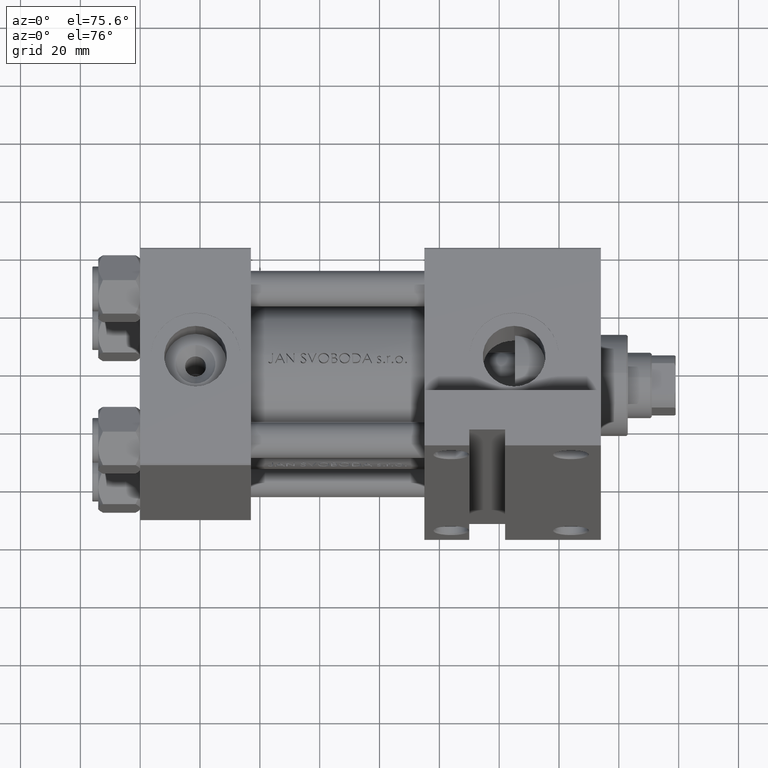
[diagram: clean part render]
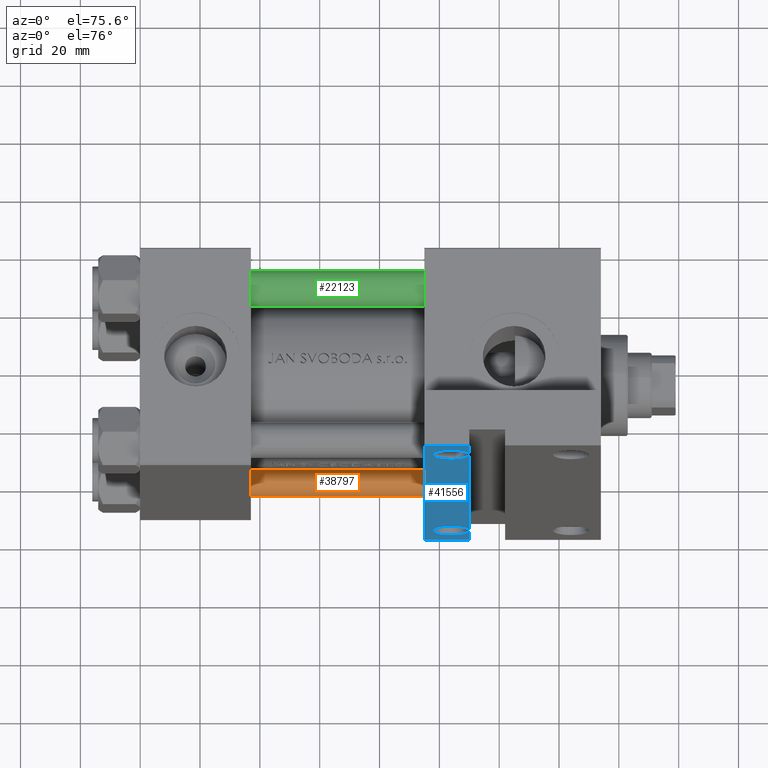
[diagram: same view with three faces highlighted in distinct colors, each labeled with its STEP entity id]
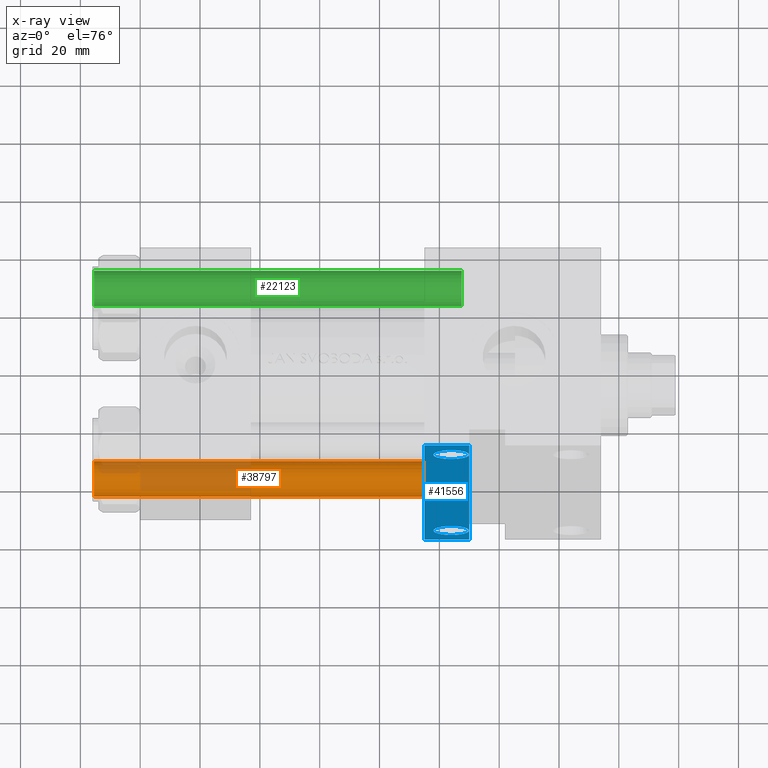
[diagram: x-ray of the same camera — body ghosted, the three highlighted faces saturated]
A machine part, auxiliary view with three faces highlighted in distinct colors.
The next image is the same camera in x-ray (body ghosted, the three faces saturated) — at least one of them is partly hidden behind the body in this view.
Their STEP definitions:

[orange] entity #38797 — the highlighted cylindrical surface (edge-blend (fillet) strip) has radius 6 mm, axis along (1, 0, 0).
#1089 = ORIENTED_EDGE ( 'NONE', *, *, #33209, .F. ) ;
#3988 = CARTESIAN_POINT ( 'NONE',  ( -6.000000000000000888, 0.000000000000000000, 0.4999999999999865663 ) ) ;
#6094 = FACE_OUTER_BOUND ( 'NONE', #7392, .T. ) ;
#7392 = EDGE_LOOP ( 'NONE', ( #16971, #42893, #25170, #1089 ) ) ;
#8439 = CARTESIAN_POINT ( 'NONE',  ( -6.000000000000000888, 0.000000000000000000, 124.0000000000000000 ) ) ;
#9364 = CARTESIAN_POINT ( 'NONE',  ( 6.000000000000000888, 7.347880794884120722E-16, 123.5000000000000426 ) ) ;
#9735 = EDGE_CURVE ( 'NONE', #32572, #13177, #16349, .T. ) ;
#10352 = AXIS2_PLACEMENT_3D ( 'NONE', #42876, #46964, #36119 ) ;
#11529 = EDGE_CURVE ( 'NONE', #30175, #32572, #29614, .T. ) ;
#12052 = DIRECTION ( 'NONE',  ( -0.000000000000000000, -0.000000000000000000, -1.000000000000000000 ) ) ;
#12739 = DIRECTION ( 'NONE',  ( -0.000000000000000000, -0.000000000000000000, -1.000000000000000000 ) ) ;
#12774 = DIRECTION ( 'NONE',  ( -0.000000000000000000, -0.000000000000000000, 1.000000000000000000 ) ) ;
#13177 = VERTEX_POINT ( 'NONE', #38172 ) ;
#13324 = CARTESIAN_POINT ( 'NONE',  ( 0.000000000000000000, 0.000000000000000000, 124.0000000000000000 ) ) ;
#15666 = LINE ( 'NONE', #8439, #24148 ) ;
#16349 = LINE ( 'NONE', #16589, #43408 ) ;
#16589 = CARTESIAN_POINT ( 'NONE',  ( 6.000000000000000888, 7.347880794884120722E-16, 124.0000000000000000 ) ) ;
#16971 = ORIENTED_EDGE ( 'NONE', *, *, #11529, .T. ) ;
#17756 = VERTEX_POINT ( 'NONE', #3988 ) ;
#23451 = CARTESIAN_POINT ( 'NONE',  ( -6.000000000000000888, 0.000000000000000000, 123.5000000000000426 ) ) ;
#24148 = VECTOR ( 'NONE', #12052, 1000.000000000000000 ) ;
#25124 = AXIS2_PLACEMENT_3D ( 'NONE', #13324, #47314, #31906 ) ;
#25170 = ORIENTED_EDGE ( 'NONE', *, *, #35380, .T. ) ;
#27486 = DIRECTION ( 'NONE',  ( 1.000000000000000000, 0.000000000000000000, 0.000000000000000000 ) ) ;
#28194 = CARTESIAN_POINT ( 'NONE',  ( 0.000000000000000000, 0.000000000000000000, 0.4999999999999865663 ) ) ;
#29614 = CIRCLE ( 'NONE', #10352, 6.000000000000000888 ) ;
#30175 = VERTEX_POINT ( 'NONE', #23451 ) ;
#31906 = DIRECTION ( 'NONE',  ( -1.000000000000000000, 0.000000000000000000, 0.000000000000000000 ) ) ;
#32572 = VERTEX_POINT ( 'NONE', #9364 ) ;
#32731 = AXIS2_PLACEMENT_3D ( 'NONE', #28194, #12774, #27486 ) ;
#33209 = EDGE_CURVE ( 'NONE', #30175, #17756, #15666, .T. ) ;
#35380 = EDGE_CURVE ( 'NONE', #13177, #17756, #41949, .T. ) ;
#35982 = CYLINDRICAL_SURFACE ( 'NONE', #25124, 6.000000000000000888 ) ;
#36119 = DIRECTION ( 'NONE',  ( 1.000000000000000000, 0.000000000000000000, 0.000000000000000000 ) ) ;
#38172 = CARTESIAN_POINT ( 'NONE',  ( 6.000000000000000888, 7.347880794884120722E-16, 0.4999999999999865663 ) ) ;
#38797 = ADVANCED_FACE ( 'NONE', ( #6094 ), #35982, .T. ) ;
#41949 = CIRCLE ( 'NONE', #32731, 6.000000000000000888 ) ;
#42876 = CARTESIAN_POINT ( 'NONE',  ( 0.000000000000000000, 0.000000000000000000, 123.5000000000000426 ) ) ;
#42893 = ORIENTED_EDGE ( 'NONE', *, *, #9735, .T. ) ;
#43408 = VECTOR ( 'NONE', #12739, 1000.000000000000000 ) ;
#46964 = DIRECTION ( 'NONE',  ( 0.000000000000000000, 0.000000000000000000, -1.000000000000000000 ) ) ;
#47314 = DIRECTION ( 'NONE',  ( -0.000000000000000000, -0.000000000000000000, -1.000000000000000000 ) ) ;

[blue] entity #41556 — the highlighted planar face has unit normal (0, -1, 0).
#1016 = VERTEX_POINT ( 'NONE', #37638 ) ;
#2110 = CARTESIAN_POINT ( 'NONE',  ( 95.00000000000000000, 37.50000000000000000, -37.50000000000000000 ) ) ;
#2756 = VERTEX_POINT ( 'NONE', #28215 ) ;
#2937 = EDGE_CURVE ( 'NONE', #1016, #12523, #21218, .T. ) ;
#2995 = DIRECTION ( 'NONE',  ( 1.000000000000000000, 0.000000000000000000, 0.000000000000000000 ) ) ;
#3605 = CARTESIAN_POINT ( 'NONE',  ( 110.0000000000000000, 63.50000000000000000, -37.50000000000000000 ) ) ;
#4395 = CIRCLE ( 'NONE', #25983, 5.999500000000018929 ) ;
#5330 = DIRECTION ( 'NONE',  ( 0.000000000000000000, 0.000000000000000000, -1.000000000000000000 ) ) ;
#5869 = CARTESIAN_POINT ( 'NONE',  ( 103.9999999999999574, 50.99999999999999289, -37.50000000000000000 ) ) ;
#5999 = ORIENTED_EDGE ( 'NONE', *, *, #45014, .T. ) ;
#6167 = EDGE_CURVE ( 'NONE', #12523, #1016, #39797, .T. ) ;
#6630 = CARTESIAN_POINT ( 'NONE',  ( 95.00000000000000000, 63.50000000000000000, -37.50000000000000000 ) ) ;
#7219 = ORIENTED_EDGE ( 'NONE', *, *, #15851, .F. ) ;
#7914 = ORIENTED_EDGE ( 'NONE', *, *, #25475, .T. ) ;
#8968 = PLANE ( 'NONE',  #33669 ) ;
#10216 = CARTESIAN_POINT ( 'NONE',  ( 110.0000000000000000, -63.50000000000000000, -37.50000000000000000 ) ) ;
#10639 = CARTESIAN_POINT ( 'NONE',  ( 110.0000000000000000, -63.50000000000000000, -37.50000000000000000 ) ) ;
#10957 = VECTOR ( 'NONE', #2995, 1000.000000000000000 ) ;
#12523 = VERTEX_POINT ( 'NONE', #24089 ) ;
#13575 = DIRECTION ( 'NONE',  ( -0.000000000000000000, -0.000000000000000000, 1.000000000000000000 ) ) ;
#13655 = DIRECTION ( 'NONE',  ( -0.000000000000000000, -0.000000000000000000, 1.000000000000000000 ) ) ;
#14246 = ORIENTED_EDGE ( 'NONE', *, *, #32321, .T. ) ;
#14879 = EDGE_CURVE ( 'NONE', #31749, #18892, #35145, .T. ) ;
#14940 = DIRECTION ( 'NONE',  ( -1.000000000000000000, 4.704334850106596780E-16, -0.000000000000000000 ) ) ;
#15631 = AXIS2_PLACEMENT_3D ( 'NONE', #30335, #40611, #28811 ) ;
#15851 = EDGE_CURVE ( 'NONE', #34993, #32294, #47272, .T. ) ;
#16662 = FACE_OUTER_BOUND ( 'NONE', #46878, .T. ) ;
#16819 = DIRECTION ( 'NONE',  ( 0.000000000000000000, -1.000000000000000000, 0.000000000000000000 ) ) ;
#18892 = VERTEX_POINT ( 'NONE', #28838 ) ;
#19096 = VECTOR ( 'NONE', #28476, 1000.000000000000000 ) ;
#19494 = DIRECTION ( 'NONE',  ( -0.000000000000000000, -0.000000000000000000, 1.000000000000000000 ) ) ;
#20406 = CARTESIAN_POINT ( 'NONE',  ( 103.9999999999999574, -50.99999999999999289, -37.50000000000000000 ) ) ;
#21218 = CIRCLE ( 'NONE', #26646, 5.999500000000018929 ) ;
#22545 = CIRCLE ( 'NONE', #15631, 5.999500000000018929 ) ;
#24089 = CARTESIAN_POINT ( 'NONE',  ( 109.9994999999999692, -50.99999999999999289, -37.50000000000000000 ) ) ;
#25192 = EDGE_LOOP ( 'NONE', ( #5999, #42834 ) ) ;
#25475 = EDGE_CURVE ( 'NONE', #31749, #32294, #38941, .T. ) ;
#25983 = AXIS2_PLACEMENT_3D ( 'NONE', #5869, #13575, #27581 ) ;
#26470 = VECTOR ( 'NONE', #14940, 1000.000000000000000 ) ;
#26646 = AXIS2_PLACEMENT_3D ( 'NONE', #26989, #19494, #41679 ) ;
#26740 = ORIENTED_EDGE ( 'NONE', *, *, #6167, .T. ) ;
#26889 = EDGE_CURVE ( 'NONE', #2756, #46568, #22545, .T. ) ;
#26989 = CARTESIAN_POINT ( 'NONE',  ( 103.9999999999999574, -50.99999999999999289, -37.50000000000000000 ) ) ;
#27002 = VECTOR ( 'NONE', #16819, 1000.000000000000000 ) ;
#27581 = DIRECTION ( 'NONE',  ( -1.000000000000000000, 0.000000000000000000, 0.000000000000000000 ) ) ;
#28215 = CARTESIAN_POINT ( 'NONE',  ( 109.9994999999999692, 50.99999999999999289, -37.50000000000000000 ) ) ;
#28476 = DIRECTION ( 'NONE',  ( 0.000000000000000000, 1.000000000000000000, 0.000000000000000000 ) ) ;
#28811 = DIRECTION ( 'NONE',  ( -1.000000000000000000, 0.000000000000000000, 0.000000000000000000 ) ) ;
#28838 = CARTESIAN_POINT ( 'NONE',  ( 94.99999999999998579, -63.50000000000000000, -37.50000000000000000 ) ) ;
#29913 = LINE ( 'NONE', #40737, #26470 ) ;
#30335 = CARTESIAN_POINT ( 'NONE',  ( 103.9999999999999574, 50.99999999999999289, -37.50000000000000000 ) ) ;
#30691 = FACE_BOUND ( 'NONE', #25192, .T. ) ;
#31155 = CARTESIAN_POINT ( 'NONE',  ( 154.0000000000000000, 37.50000000000000000, -37.50000000000000000 ) ) ;
#31749 = VERTEX_POINT ( 'NONE', #33420 ) ;
#32294 = VERTEX_POINT ( 'NONE', #3605 ) ;
#32321 = EDGE_CURVE ( 'NONE', #34993, #18892, #29913, .T. ) ;
#33420 = CARTESIAN_POINT ( 'NONE',  ( 95.00000000000000000, 63.50000000000000000, -37.50000000000000000 ) ) ;
#33669 = AXIS2_PLACEMENT_3D ( 'NONE', #31155, #5330, #42217 ) ;
#34993 = VERTEX_POINT ( 'NONE', #10216 ) ;
#35145 = LINE ( 'NONE', #2110, #27002 ) ;
#37638 = CARTESIAN_POINT ( 'NONE',  ( 98.00049999999993133, -50.99999999999999289, -37.50000000000000000 ) ) ;
#38835 = FACE_BOUND ( 'NONE', #46149, .T. ) ;
#38941 = LINE ( 'NONE', #6630, #10957 ) ;
#39034 = AXIS2_PLACEMENT_3D ( 'NONE', #20406, #13655, #46420 ) ;
#39797 = CIRCLE ( 'NONE', #39034, 5.999500000000018929 ) ;
#40611 = DIRECTION ( 'NONE',  ( -0.000000000000000000, -0.000000000000000000, 1.000000000000000000 ) ) ;
#40737 = CARTESIAN_POINT ( 'NONE',  ( 94.99999999999998579, -63.50000000000000000, -37.50000000000000000 ) ) ;
#41386 = ORIENTED_EDGE ( 'NONE', *, *, #14879, .F. ) ;
#41556 = ADVANCED_FACE ( 'NONE', ( #16662, #30691, #38835 ), #8968, .T. ) ;
#41679 = DIRECTION ( 'NONE',  ( -1.000000000000000000, 0.000000000000000000, 0.000000000000000000 ) ) ;
#42217 = DIRECTION ( 'NONE',  ( -1.000000000000000000, 0.000000000000000000, -0.000000000000000000 ) ) ;
#42834 = ORIENTED_EDGE ( 'NONE', *, *, #26889, .T. ) ;
#45014 = EDGE_CURVE ( 'NONE', #46568, #2756, #4395, .T. ) ;
#45905 = CARTESIAN_POINT ( 'NONE',  ( 98.00049999999993133, 50.99999999999999289, -37.50000000000000000 ) ) ;
#46149 = EDGE_LOOP ( 'NONE', ( #46438, #26740 ) ) ;
#46420 = DIRECTION ( 'NONE',  ( -1.000000000000000000, 0.000000000000000000, 0.000000000000000000 ) ) ;
#46438 = ORIENTED_EDGE ( 'NONE', *, *, #2937, .T. ) ;
#46568 = VERTEX_POINT ( 'NONE', #45905 ) ;
#46878 = EDGE_LOOP ( 'NONE', ( #7219, #14246, #41386, #7914 ) ) ;
#47272 = LINE ( 'NONE', #10639, #19096 ) ;

[green] entity #22123 — the highlighted cylindrical surface (edge-blend (fillet) strip) has radius 6 mm, axis along (1, -0, 0).
#343 = ORIENTED_EDGE ( 'NONE', *, *, #23239, .T. ) ;
#821 = ORIENTED_EDGE ( 'NONE', *, *, #9735, .F. ) ;
#3988 = CARTESIAN_POINT ( 'NONE',  ( -6.000000000000000888, 0.000000000000000000, 0.4999999999999865663 ) ) ;
#4936 = AXIS2_PLACEMENT_3D ( 'NONE', #27368, #44732, #22807 ) ;
#6978 = EDGE_LOOP ( 'NONE', ( #821, #343, #20338, #44508 ) ) ;
#8439 = CARTESIAN_POINT ( 'NONE',  ( -6.000000000000000888, 0.000000000000000000, 124.0000000000000000 ) ) ;
#9364 = CARTESIAN_POINT ( 'NONE',  ( 6.000000000000000888, 7.347880794884120722E-16, 123.5000000000000426 ) ) ;
#9476 = CYLINDRICAL_SURFACE ( 'NONE', #12366, 6.000000000000000888 ) ;
#9735 = EDGE_CURVE ( 'NONE', #32572, #13177, #16349, .T. ) ;
#11105 = DIRECTION ( 'NONE',  ( 1.000000000000000000, 0.000000000000000000, 0.000000000000000000 ) ) ;
#12052 = DIRECTION ( 'NONE',  ( -0.000000000000000000, -0.000000000000000000, -1.000000000000000000 ) ) ;
#12366 = AXIS2_PLACEMENT_3D ( 'NONE', #15778, #24178, #45177 ) ;
#12739 = DIRECTION ( 'NONE',  ( -0.000000000000000000, -0.000000000000000000, -1.000000000000000000 ) ) ;
#13177 = VERTEX_POINT ( 'NONE', #38172 ) ;
#15666 = LINE ( 'NONE', #8439, #24148 ) ;
#15778 = CARTESIAN_POINT ( 'NONE',  ( 0.000000000000000000, 0.000000000000000000, 124.0000000000000000 ) ) ;
#16349 = LINE ( 'NONE', #16589, #43408 ) ;
#16589 = CARTESIAN_POINT ( 'NONE',  ( 6.000000000000000888, 7.347880794884120722E-16, 124.0000000000000000 ) ) ;
#17756 = VERTEX_POINT ( 'NONE', #3988 ) ;
#20338 = ORIENTED_EDGE ( 'NONE', *, *, #33209, .T. ) ;
#22123 = ADVANCED_FACE ( 'NONE', ( #30968 ), #9476, .T. ) ;
#22807 = DIRECTION ( 'NONE',  ( 1.000000000000000000, 0.000000000000000000, 0.000000000000000000 ) ) ;
#23239 = EDGE_CURVE ( 'NONE', #32572, #30175, #31674, .T. ) ;
#23451 = CARTESIAN_POINT ( 'NONE',  ( -6.000000000000000888, 0.000000000000000000, 123.5000000000000426 ) ) ;
#24148 = VECTOR ( 'NONE', #12052, 1000.000000000000000 ) ;
#24178 = DIRECTION ( 'NONE',  ( -0.000000000000000000, -0.000000000000000000, -1.000000000000000000 ) ) ;
#27368 = CARTESIAN_POINT ( 'NONE',  ( 0.000000000000000000, 0.000000000000000000, 0.4999999999999865663 ) ) ;
#30175 = VERTEX_POINT ( 'NONE', #23451 ) ;
#30968 = FACE_OUTER_BOUND ( 'NONE', #6978, .T. ) ;
#31674 = CIRCLE ( 'NONE', #41652, 6.000000000000000888 ) ;
#32572 = VERTEX_POINT ( 'NONE', #9364 ) ;
#33043 = DIRECTION ( 'NONE',  ( 0.000000000000000000, 0.000000000000000000, -1.000000000000000000 ) ) ;
#33209 = EDGE_CURVE ( 'NONE', #30175, #17756, #15666, .T. ) ;
#34207 = CIRCLE ( 'NONE', #4936, 6.000000000000000888 ) ;
#37367 = CARTESIAN_POINT ( 'NONE',  ( 0.000000000000000000, 0.000000000000000000, 123.5000000000000426 ) ) ;
#38172 = CARTESIAN_POINT ( 'NONE',  ( 6.000000000000000888, 7.347880794884120722E-16, 0.4999999999999865663 ) ) ;
#41652 = AXIS2_PLACEMENT_3D ( 'NONE', #37367, #33043, #11105 ) ;
#43408 = VECTOR ( 'NONE', #12739, 1000.000000000000000 ) ;
#44508 = ORIENTED_EDGE ( 'NONE', *, *, #46524, .T. ) ;
#44732 = DIRECTION ( 'NONE',  ( -0.000000000000000000, -0.000000000000000000, 1.000000000000000000 ) ) ;
#45177 = DIRECTION ( 'NONE',  ( -1.000000000000000000, 0.000000000000000000, 0.000000000000000000 ) ) ;
#46524 = EDGE_CURVE ( 'NONE', #17756, #13177, #34207, .T. ) ;